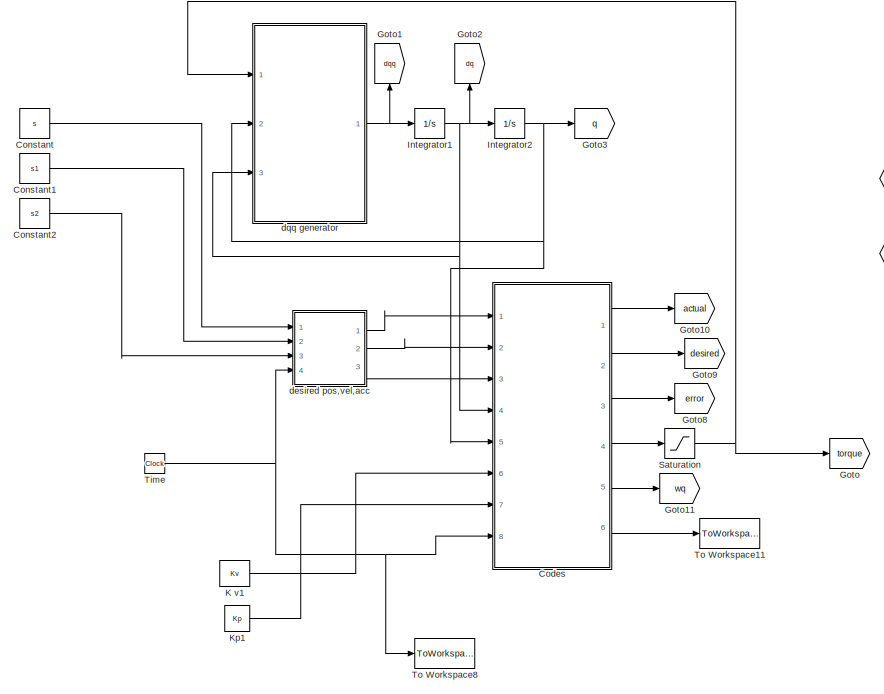
[diagram: root canvas - part 1/2, middle left region]
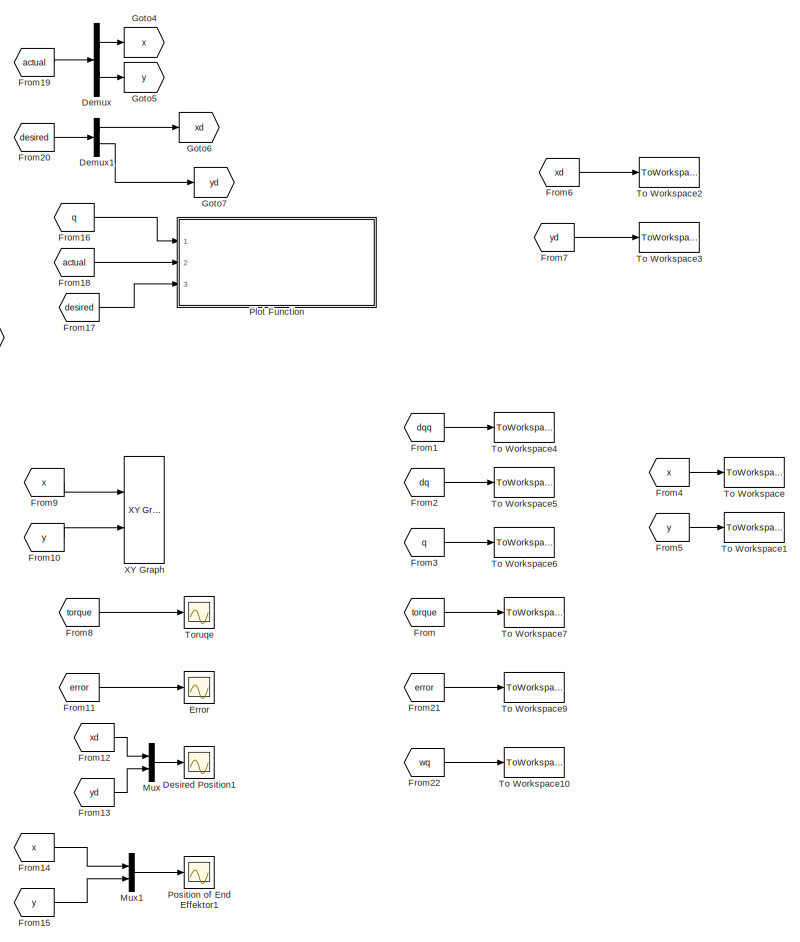
[diagram: root canvas - part 2/2, right side, full height]
MODEL slx_e587795aa813
KIND model
CONFIG AbsTol = auto
CONFIG EnableMultiTasking = off
CONFIG FixedStep = 0.1
CONFIG MaxStep = auto
CONFIG MinStep = auto
CONFIG RelTol = 1e-3
CONFIG SampleTimeConstraint = Unconstrained
CONFIG Solver = ode3
CONFIG SolverName = ode3
CONFIG StartTime = 0.0
CONFIG StopTime = 120
WORKSPACE source: MATLAB code (in-file)
WORKSPACE fix_step = Simulink.Signal
WORKSPACE code: fix_step.DataType = 'double';
WORKSPACE code: fix_step.Dimensions = 1;
WORKSPACE code: fix_step.Complexity = 'real';
WORKSPACE code: fix_step.SamplingMode = 'Sample based';
WORKSPACE code: fix_step.InitialValue = '0.1';
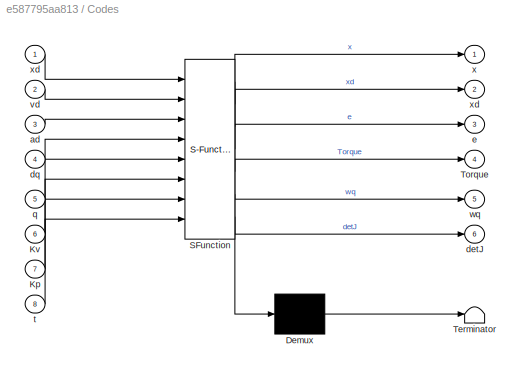
BLOCK [SubSystem] Codes
  ErrorFcn = Stateflow.Translate.translate
  PermitHierarchicalResolution = ExplicitOnly
  Ports = [8, 6]
  RequestExecContextInheritance = off
  SFBlockType = MATLAB Function
  TreatAsAtomicUnit = on
BLOCK [Demux] Codes/ Demux 
  Outputs = 1
  Ports = [1, 1]
BLOCK [S-Function] Codes/ SFunction 
  EnableBusSupport = on
  FunctionName = sf_sfun
  PortCounts = [8 7]
  Ports = [8, 7]
  SFcnIsStateOwnerBlock = off
  SFunctionDeploymentMode = off
  Tag = Stateflow S-Function Dynamic_5R_xd_from_outside 5
BLOCK [Terminator] Codes/ Terminator 
BLOCK [Inport] Codes/Kp
  IconDisplay = Port number
  Port = 7
BLOCK [Inport] Codes/Kv
  IconDisplay = Port number
  Port = 6
BLOCK [Outport] Codes/Torque
  IconDisplay = Port number
  Port = 4
BLOCK [Inport] Codes/ad
  IconDisplay = Port number
  Port = 3
BLOCK [Outport] Codes/detJ
  IconDisplay = Port number
  Port = 6
BLOCK [Inport] Codes/dq
  IconDisplay = Port number
  Port = 4
BLOCK [Outport] Codes/e
  IconDisplay = Port number
  Port = 3
BLOCK [Inport] Codes/q
  IconDisplay = Port number
  Port = 5
BLOCK [Inport] Codes/t
  IconDisplay = Port number
  Port = 8
BLOCK [Inport] Codes/vd
  IconDisplay = Port number
  Port = 2
BLOCK [Outport] Codes/wq
  IconDisplay = Port number
  Port = 5
BLOCK [Outport] Codes/x
  IconDisplay = Port number
BLOCK [Outport] Codes/xd
  IconDisplay = Port number
  Port = 2
BLOCK [Inport] Codes/xd 
  IconDisplay = Port number
BLOCK [Constant] Constant
  Value = s
BLOCK [Constant] Constant1
  Value = s1
BLOCK [Constant] Constant2
  Value = s2
BLOCK [Demux] Demux
  DisplayOption = bar
  Outputs = 2
  Ports = [1, 2]
BLOCK [Demux] Demux1
  DisplayOption = bar
  Outputs = 2
  Ports = [1, 2]
BLOCK [Scope] Desired Position1
  Floating = off
  NumInputPorts = 1
  Ports = [1]
  ScopeSpecificationString = Simulink.scopes.TimeScopeBlockCfg('CurrentConfiguration', extmgr.ConfigurationSet(extmgr.Configuration('Core','General UI',true),extmgr.Configuration('Core','Source UI',true),extmgr.Configuration('Sources','WiredSimulink',true,'DataLoggingVariableName','ScopeData2'),extmgr.Configuration('Visuals','Time Domain',true,'SerializedDisplays',{struct('MinYLimReal','7.37503','MaxYLimReal','12.625','YLabel...<+1376ch>
BLOCK [Scope] Error
  Floating = off
  NumInputPorts = 1
  Ports = [1]
  ScopeSpecificationString = Simulink.scopes.TimeScopeBlockCfg('CurrentConfiguration', extmgr.ConfigurationSet(extmgr.Configuration('Core','General UI',true),extmgr.Configuration('Core','Source UI',true),extmgr.Configuration('Sources','WiredSimulink',true,'DataLoggingVariableName','ScopeData2'),extmgr.Configuration('Visuals','Time Domain',true,'SerializedDisplays',{struct('MinYLimReal','-0.01417','MaxYLimReal','0.07672','YLab...<+1470ch>
BLOCK [From] From
  GotoTag = torque
BLOCK [From] From1
  GotoTag = dqq
BLOCK [From] From10
  GotoTag = y
BLOCK [From] From11
  GotoTag = error
BLOCK [From] From12
  GotoTag = xd
BLOCK [From] From13
  GotoTag = yd
BLOCK [From] From14
  GotoTag = x
BLOCK [From] From15
  GotoTag = y
BLOCK [From] From16
  GotoTag = q
BLOCK [From] From17
  GotoTag = desired
BLOCK [From] From18
  GotoTag = actual
BLOCK [From] From19
  GotoTag = actual
BLOCK [From] From2
  GotoTag = dq
BLOCK [From] From20
  GotoTag = desired
BLOCK [From] From21
  GotoTag = error
BLOCK [From] From22
  GotoTag = wq
BLOCK [From] From3
  GotoTag = q
BLOCK [From] From4
  GotoTag = x
BLOCK [From] From5
  GotoTag = y
BLOCK [From] From6
  GotoTag = xd
BLOCK [From] From7
  GotoTag = yd
BLOCK [From] From8
  GotoTag = torque
BLOCK [From] From9
  GotoTag = x
BLOCK [Goto] Goto
  GotoTag = torque
BLOCK [Goto] Goto1
  GotoTag = dqq
BLOCK [Goto] Goto10
  GotoTag = actual
BLOCK [Goto] Goto11
  GotoTag = wq
BLOCK [Goto] Goto2
  GotoTag = dq
BLOCK [Goto] Goto3
  GotoTag = q
BLOCK [Goto] Goto4
  GotoTag = x
BLOCK [Goto] Goto5
  GotoTag = y
BLOCK [Goto] Goto6
  GotoTag = xd
BLOCK [Goto] Goto7
  GotoTag = yd
BLOCK [Goto] Goto8
  GotoTag = error
BLOCK [Goto] Goto9
  GotoTag = desired
BLOCK [Integrator] Integrator1
  InitialCondition = [pi/3; pi/6]
  Ports = [1, 1]
BLOCK [Integrator] Integrator2
  InitialCondition = [pi/3; pi/6]
  Ports = [1, 1]
BLOCK [Constant] K v1
  Value = Kv
BLOCK [Constant] Kp1
  Value = Kp
BLOCK [Mux] Mux
  DisplayOption = bar
  Inputs = 2
  Ports = [2, 1]
BLOCK [Mux] Mux1
  DisplayOption = bar
  Inputs = 2
  Ports = [2, 1]
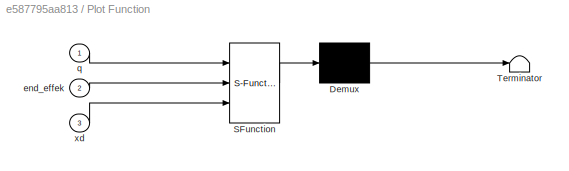
BLOCK [SubSystem] Plot Function 
  ErrorFcn = Stateflow.Translate.translate
  PermitHierarchicalResolution = ExplicitOnly
  Ports = [3]
  RequestExecContextInheritance = off
  SFBlockType = MATLAB Function
  TreatAsAtomicUnit = on
BLOCK [Demux] Plot Function / Demux 
  Outputs = 1
  Ports = [1, 1]
BLOCK [S-Function] Plot Function / SFunction 
  EnableBusSupport = on
  FunctionName = sf_sfun
  PortCounts = [3 1]
  Ports = [3, 1]
  SFcnIsStateOwnerBlock = off
  SFunctionDeploymentMode = off
  Tag = Stateflow S-Function Dynamic_5R_xd_from_outside 4
BLOCK [Terminator] Plot Function / Terminator 
BLOCK [Inport] Plot Function /end_effek
  IconDisplay = Port number
  Port = 2
BLOCK [Inport] Plot Function /q
  IconDisplay = Port number
BLOCK [Inport] Plot Function /xd
  IconDisplay = Port number
  Port = 3
BLOCK [Scope] Position of End Effektor1
  Floating = off
  NumInputPorts = 1
  Ports = [1]
  ScopeSpecificationString = Simulink.scopes.TimeScopeBlockCfg('CurrentConfiguration', extmgr.ConfigurationSet(extmgr.Configuration('Core','General UI',true),extmgr.Configuration('Core','Source UI',true),extmgr.Configuration('Sources','WiredSimulink',true,'DataLoggingVariableName','ScopeData3'),extmgr.Configuration('Visuals','Time Domain',true,'SerializedDisplays',{struct('MinYLimReal','179.84012','MaxYLimReal','354.94351','Y...<+1445ch>
BLOCK [Saturate] Saturation
  InputPortMap = u0
  LowerLimit = -inf
  Ports = [1, 1]
  UpperLimit = inf
BLOCK [Clock] Time
BLOCK [ToWorkspace] To Workspace
  FixptAsFi = on
  MaxDataPoints = inf
  Ports = [1]
  SampleTime = -1
  VariableName = x
BLOCK [ToWorkspace] To Workspace1
  FixptAsFi = on
  MaxDataPoints = inf
  Ports = [1]
  SampleTime = -1
  VariableName = y
BLOCK [ToWorkspace] To Workspace10
  FixptAsFi = on
  MaxDataPoints = inf
  Ports = [1]
  SampleTime = -1
  VariableName = wq
BLOCK [ToWorkspace] To Workspace11
  FixptAsFi = on
  MaxDataPoints = inf
  Ports = [1]
  SampleTime = -1
  VariableName = detJ
BLOCK [ToWorkspace] To Workspace2
  FixptAsFi = on
  MaxDataPoints = inf
  Ports = [1]
  SampleTime = -1
  VariableName = xd
BLOCK [ToWorkspace] To Workspace3
  FixptAsFi = on
  MaxDataPoints = inf
  Ports = [1]
  SampleTime = -1
  VariableName = yd
BLOCK [ToWorkspace] To Workspace4
  FixptAsFi = on
  MaxDataPoints = inf
  Ports = [1]
  SampleTime = -1
  VariableName = dqq
BLOCK [ToWorkspace] To Workspace5
  FixptAsFi = on
  MaxDataPoints = inf
  Ports = [1]
  SampleTime = -1
  VariableName = dq
BLOCK [ToWorkspace] To Workspace6
  FixptAsFi = on
  MaxDataPoints = inf
  Ports = [1]
  SampleTime = -1
  VariableName = q
BLOCK [ToWorkspace] To Workspace7
  FixptAsFi = on
  MaxDataPoints = inf
  Ports = [1]
  SampleTime = -1
  VariableName = torq
BLOCK [ToWorkspace] To Workspace8
  FixptAsFi = on
  MaxDataPoints = inf
  Ports = [1]
  SampleTime = -1
  VariableName = t
BLOCK [ToWorkspace] To Workspace9
  FixptAsFi = on
  MaxDataPoints = inf
  Ports = [1]
  SampleTime = -1
  VariableName = error
BLOCK [Scope] Toruqe
  Floating = off
  NumInputPorts = 1
  Ports = [1]
  ScopeSpecificationString = Simulink.scopes.TimeScopeBlockCfg('CurrentConfiguration', extmgr.ConfigurationSet(extmgr.Configuration('Core','General UI',true),extmgr.Configuration('Core','Source UI',true),extmgr.Configuration('Sources','WiredSimulink',true,'DataLoggingVariableName','ScopeData1'),extmgr.Configuration('Visuals','Time Domain',true,'SerializedDisplays',{struct('MinYLimReal','-19.53907','MaxYLimReal','3.00889','YLa...<+1491ch>
BLOCK [Reference] XY Graph  REF=simulink/Sinks/XY Graph
  Ports = [2]
  SourceBlock = simulink/Sinks/XY Graph
  SourceProductBaseCode = SL
  SourceProductName = Simulink
  SourceType = XY scope.
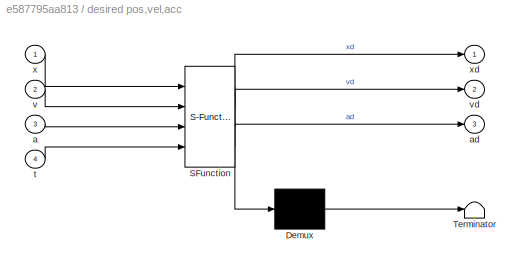
BLOCK [SubSystem] desired pos,vel,acc
  ErrorFcn = Stateflow.Translate.translate
  PermitHierarchicalResolution = ExplicitOnly
  Ports = [4, 3]
  RequestExecContextInheritance = off
  SFBlockType = MATLAB Function
  TreatAsAtomicUnit = on
BLOCK [Demux] desired pos,vel,acc/ Demux 
  Outputs = 1
  Ports = [1, 1]
BLOCK [S-Function] desired pos,vel,acc/ SFunction 
  EnableBusSupport = on
  FunctionName = sf_sfun
  PortCounts = [4 4]
  Ports = [4, 4]
  SFcnIsStateOwnerBlock = off
  SFunctionDeploymentMode = off
  Tag = Stateflow S-Function Dynamic_5R_xd_from_outside 2
BLOCK [Terminator] desired pos,vel,acc/ Terminator 
BLOCK [Inport] desired pos,vel,acc/a
  IconDisplay = Port number
  Port = 3
BLOCK [Outport] desired pos,vel,acc/ad
  IconDisplay = Port number
  Port = 3
BLOCK [Inport] desired pos,vel,acc/t
  IconDisplay = Port number
  Port = 4
BLOCK [Inport] desired pos,vel,acc/v
  IconDisplay = Port number
  Port = 2
BLOCK [Outport] desired pos,vel,acc/vd
  IconDisplay = Port number
  Port = 2
BLOCK [Inport] desired pos,vel,acc/x
  IconDisplay = Port number
BLOCK [Outport] desired pos,vel,acc/xd
  IconDisplay = Port number
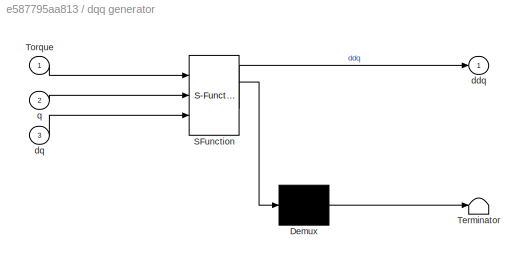
BLOCK [SubSystem] dqq generator
  ErrorFcn = Stateflow.Translate.translate
  PermitHierarchicalResolution = ExplicitOnly
  Ports = [3, 1]
  RequestExecContextInheritance = off
  SFBlockType = MATLAB Function
  TreatAsAtomicUnit = on
BLOCK [Demux] dqq generator/ Demux 
  Outputs = 1
  Ports = [1, 1]
BLOCK [S-Function] dqq generator/ SFunction 
  EnableBusSupport = on
  FunctionName = sf_sfun
  PortCounts = [3 2]
  Ports = [3, 2]
  SFcnIsStateOwnerBlock = off
  SFunctionDeploymentMode = off
  Tag = Stateflow S-Function Dynamic_5R_xd_from_outside 1
BLOCK [Terminator] dqq generator/ Terminator 
BLOCK [Inport] dqq generator/Torque
  IconDisplay = Port number
BLOCK [Outport] dqq generator/ddq
  IconDisplay = Port number
BLOCK [Inport] dqq generator/dq
  IconDisplay = Port number
  Port = 3
BLOCK [Inport] dqq generator/q
  IconDisplay = Port number
  Port = 2
LINE Codes:1 -> Goto10:1
LINE Codes:2 -> Goto9:1
LINE Codes:3 -> Goto8:1
LINE Codes:4 -> Saturation:1
LINE Codes:5 -> Goto11:1
LINE Codes:6 -> To Workspace11:1
LINE Constant1:1 -> desired pos,vel,acc:2
LINE Constant2:1 -> desired pos,vel,acc:3
LINE Constant:1 -> desired pos,vel,acc:1
LINE Demux1:1 -> Goto6:1
LINE Demux1:2 -> Goto7:1
LINE Demux:1 -> Goto4:1
LINE Demux:2 -> Goto5:1
LINE From10:1 -> XY Graph:2
LINE From11:1 -> Error:1
LINE From12:1 -> Mux:1
LINE From13:1 -> Mux:2
LINE From14:1 -> Mux1:1
LINE From15:1 -> Mux1:2
LINE From16:1 -> Plot Function :1
LINE From17:1 -> Plot Function :3
LINE From18:1 -> Plot Function :2
LINE From19:1 -> Demux:1
LINE From1:1 -> To Workspace4:1
LINE From20:1 -> Demux1:1
LINE From21:1 -> To Workspace9:1
LINE From22:1 -> To Workspace10:1
LINE From2:1 -> To Workspace5:1
LINE From3:1 -> To Workspace6:1
LINE From4:1 -> To Workspace:1
LINE From5:1 -> To Workspace1:1
LINE From6:1 -> To Workspace2:1
LINE From7:1 -> To Workspace3:1
LINE From8:1 -> Toruqe:1
LINE From9:1 -> XY Graph:1
LINE From:1 -> To Workspace7:1
NET Integrator1:1 -> Codes:4, Goto2:1, Integrator2:1, dqq generator:3
NET Integrator2:1 -> Codes:5, Goto3:1, dqq generator:2
LINE K v1:1 -> Codes:6
LINE Kp1:1 -> Codes:7
LINE Mux1:1 -> Position of End Effektor1:1
LINE Mux:1 -> Desired Position1:1
NET Saturation:1 -> Goto:1, dqq generator:1
NET Time:1 -> Codes:8, To Workspace8:1, desired pos,vel,acc:4
LINE desired pos,vel,acc:1 -> Codes:1
LINE desired pos,vel,acc:2 -> Codes:2
LINE desired pos,vel,acc:3 -> Codes:3
NET dqq generator:1 -> Goto1:1, Integrator1:1
note: NET lines group one-source signal fan-out (src -> all destinations, sorted); 1:1 wires keep LINE
CHART dqq generator states=1 transitions=1
  STATE_LABEL 'eML_blk_kernel()'
  STATE_LABEL "SCRIPT:\nfunction ddq =  Dynamic_Model(Torque,q,dq)\n\n\na1=0.25;\na2=0.25;\na3=0.25;\na4=0.25;\na5=0.20;\n\n\n\n\n\nq2=q(1,1);\nq5=q(2,1);\n\n% fprintf('\\n  theta2 = %f [rad]  and theta5= %f [rad] \\n ' , q2, q5)\n\n\nA=2*a2*a3*cos(q2)-2*a3*(a5*cos(q5)+a1);\nB=2*a2*a3*sin(q2)-2*a3*a5*sin(q5);\nC=-1*(-2*a2*(a5*cos(q5)+a1)*cos(q2)+2*a1*a5*cos(q5)-2*a2*sin(q2)*a5*sin(q5)+a1*a1+a2*a2+a3*a3+a5*a5-a4*a4);\n\nt1 = (B+sqrt(A*A+B...<+3608ch>"
CHART desired pos,vel,acc states=1 transitions=1
  STATE_LABEL 'eML_blk_kernel()'
  STATE_LABEL 'SCRIPT:\nfunction [xd,vd,ad] = fcn(x,v,a,t)\nfix_step=0.1\nxd=[x(1,t/fix_step+1) ;x(2,t/fix_step+1)];\nvd=[v(1,t/fix_step+1) ;v(2,t/fix_step+1)];\nad=[a(1,t/fix_step+1) ;a(2,t/fix_step+1)];\n% if c==1\n%     xd=[8+0.1*cos(t);12+0.1*cos(t)];\n% elseif c==2\n%     xd=[8+0.1*cos(5*t);12+0.1*cos(5*t)];\n% \n% elseif c==3\n%     \n%     xd=[8+0.1*cos(10*t);12+0.1*cos(10*t)];\n% else\n%     \n%    xd=[182;244]\n% end\n \n...<+1ch>'
CHART Plot Function
 states=1 transitions=1
  STATE_LABEL 'eML_blk_kernel()'
  STATE_LABEL 'SCRIPT:\nfunction  plot(q,end_effek,xd)\na1=0.25;\na2=0.25;\na3=0.25;\na4=0.25;\na5=0.20;\n\n\n\nq2=q(1,1);\nq5=q(2,1);\n\n\nA=2*a2*a3*cos(q2)-2*a3*(a5*cos(q5)+a1);\nB=2*a2*a3*sin(q2)-2*a3*a5*sin(q5);\nC=-1*(-2*a2*(a5*cos(q5)+a1)*cos(q2)+2*a1*a5*cos(q5)-2*a2*sin(q2)*a5*sin(q5)+a1*a1+a2*a2+a3*a3+a5*a5-a4*a4);\n\nt1 = (B+sqrt(A*A+B*B-C*C))/(A+C);\n\nt2= (B-sqrt(A*A+B*B-C*C))/(A+C);\n\n\n\nq3 = 2*atan(t1);\nq3 = 2*atan(t2);\n...<+1483ch>'
CHART Codes states=1 transitions=1
  STATE_LABEL 'eML_blk_kernel()'
  STATE_LABEL "SCRIPT:\nfunction [x,xd,e,Torque,wq,detJ]=  armrobot( xd,vd,ad,dq,q,Kv,Kp,t)\n\n\n\n% a1=2.5;\n% a2=2.5;\n% a3=2.5;\n% a4=2.5;\n% a5=2.0;\n\n\na1=0.25;\na2=0.25;\na3=0.25;\na4=0.25;\na5=0.20;\n\n\nq2=q(1,1);\nq5=q(2,1);\n\n% fprintf('\\n  theta2 = %f [rad]  and theta5= %f [rad] \\n ' , q2, q5)\n\n\nA=2*a2*a3*cos(q2)-2*a3*(a5*cos(q5)+a1);\nB=2*a2*a3*sin(q2)-2*a3*a5*sin(q5);\nC=-1*(-2*a2*(a5*cos(q5)+a1)*cos(q2)+2*a1*a5*cos(q5)-...<+3608ch>"
